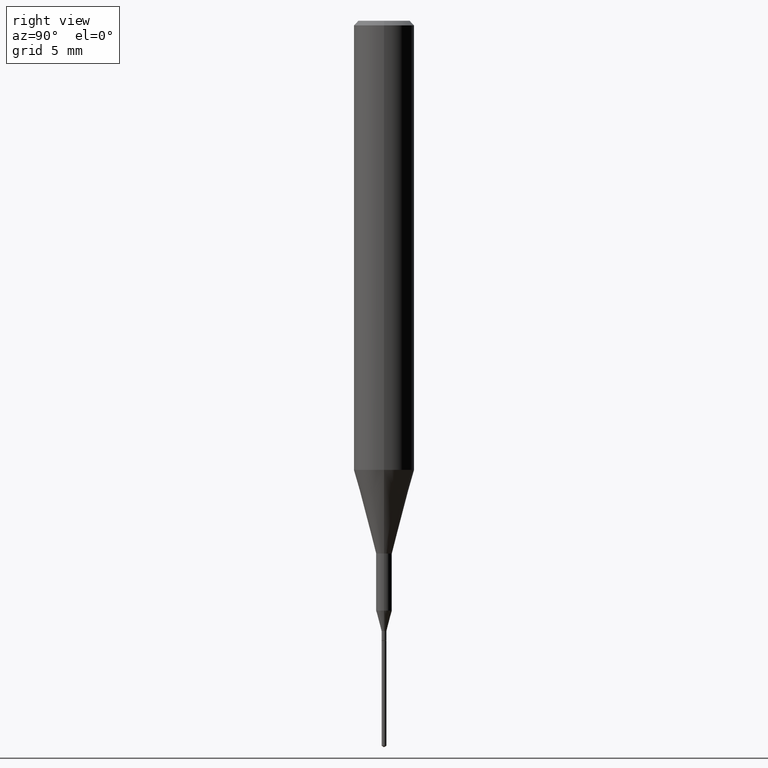
[diagram: clean part render]
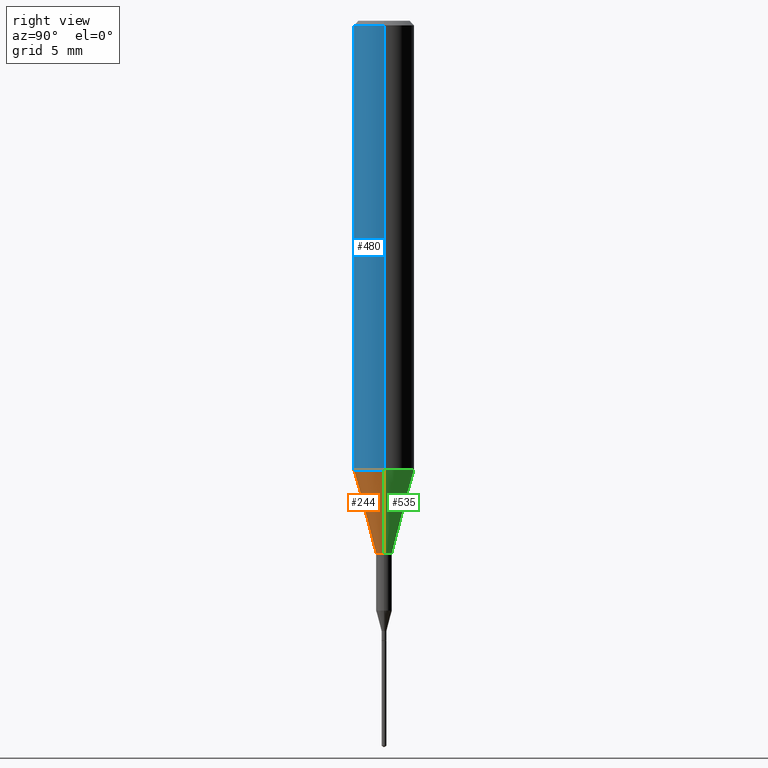
[diagram: same view with three faces highlighted in distinct colors, each labeled with its STEP entity id]
A machine part, right view with three faces highlighted in distinct colors.
Their STEP definitions:

[orange] entity #244 — the highlighted conical surface has half-angle 15 deg.
#46 = CARTESIAN_POINT ( 'NONE',  ( 2.267909797027042920E-29, -3.237974131778804114E-15, -0.9273926501499395458 ) ) ;
#48 = CARTESIAN_POINT ( 'NONE',  ( 0.06250000000000011102, -3.674409299134196572E-15, -0.9273926501499395458 ) ) ;
#119 = CARTESIAN_POINT ( 'NONE',  ( 2.267909797027042920E-29, -3.237974131778804114E-15, -0.9273926501499395458 ) ) ;
#130 = VECTOR ( 'NONE', #587, 39.37007874015748143 ) ;
#131 = EDGE_CURVE ( 'NONE', #434, #421, #566, .T. ) ;
#144 = CARTESIAN_POINT ( 'NONE',  ( -0.01624999999999999709, -3.931188865428788594E-15, -1.100000000000000089 ) ) ;
#163 = DIRECTION ( 'NONE',  ( 1.000000000000000000, -6.982962677686259611E-15, 0.000000000000000000 ) ) ;
#167 = CONICAL_SURFACE ( 'NONE', #325, 0.06250000000000011102, 0.2617993877991501850 ) ;
#174 = LINE ( 'NONE', #48, #512 ) ;
#180 = FACE_OUTER_BOUND ( 'NONE', #307, .T. ) ;
#189 = ORIENTED_EDGE ( 'NONE', *, *, #131, .T. ) ;
#193 = EDGE_CURVE ( 'NONE', #421, #335, #174, .T. ) ;
#209 = CARTESIAN_POINT ( 'NONE',  ( 2.690015686803650369E-29, -3.840629472727460101E-15, -1.100000000000000089 ) ) ;
#225 = AXIS2_PLACEMENT_3D ( 'NONE', #209, #395, #163 ) ;
#232 = DIRECTION ( 'NONE',  ( -2.445468806185136597E-29, 3.491481338843145583E-15, 1.000000000000000000 ) ) ;
#239 = ORIENTED_EDGE ( 'NONE', *, *, #552, .F. ) ;
#244 = ADVANCED_FACE ( 'NONE', ( #180 ), #167, .T. ) ;
#275 = DIRECTION ( 'NONE',  ( 0.2588190451025214611, 1.565188264969620982E-15, 0.9659258262890679791 ) ) ;
#300 = DIRECTION ( 'NONE',  ( -2.445468806185136597E-29, 3.491481338843145583E-15, 1.000000000000000000 ) ) ;
#302 = EDGE_CURVE ( 'NONE', #434, #374, #505, .T. ) ;
#307 = EDGE_LOOP ( 'NONE', ( #377, #189, #464, #239 ) ) ;
#323 = DIRECTION ( 'NONE',  ( 1.000000000000000000, -6.982962677686265922E-15, 0.000000000000000000 ) ) ;
#325 = AXIS2_PLACEMENT_3D ( 'NONE', #46, #232, #323 ) ;
#328 = CARTESIAN_POINT ( 'NONE',  ( -0.06250000000000011102, -2.793884921928740709E-15, -0.9273926501499395458 ) ) ;
#335 = VERTEX_POINT ( 'NONE', #411 ) ;
#374 = VERTEX_POINT ( 'NONE', #328 ) ;
#377 = ORIENTED_EDGE ( 'NONE', *, *, #302, .F. ) ;
#391 = AXIS2_PLACEMENT_3D ( 'NONE', #119, #300, #393 ) ;
#393 = DIRECTION ( 'NONE',  ( 1.000000000000000000, -6.982962677686265922E-15, 0.000000000000000000 ) ) ;
#395 = DIRECTION ( 'NONE',  ( -2.445468806185136597E-29, 3.491481338843145583E-15, 1.000000000000000000 ) ) ;
#408 = CARTESIAN_POINT ( 'NONE',  ( -0.06250000000000011102, -2.793884921928740709E-15, -0.9273926501499395458 ) ) ;
#411 = CARTESIAN_POINT ( 'NONE',  ( 0.06250000000000011102, -3.674409299134196572E-15, -0.9273926501499395458 ) ) ;
#421 = VERTEX_POINT ( 'NONE', #515 ) ;
#434 = VERTEX_POINT ( 'NONE', #144 ) ;
#464 = ORIENTED_EDGE ( 'NONE', *, *, #193, .T. ) ;
#505 = LINE ( 'NONE', #408, #130 ) ;
#512 = VECTOR ( 'NONE', #275, 39.37007874015748143 ) ;
#514 = CIRCLE ( 'NONE', #391, 0.06250000000000011102 ) ;
#515 = CARTESIAN_POINT ( 'NONE',  ( 0.01624999999999999709, -3.954102616239861778E-15, -1.100000000000000089 ) ) ;
#552 = EDGE_CURVE ( 'NONE', #374, #335, #514, .T. ) ;
#566 = CIRCLE ( 'NONE', #225, 0.01624999999999999709 ) ;
#587 = DIRECTION ( 'NONE',  ( -0.2588190451025214611, 5.211531920934550253E-15, 0.9659258262890679791 ) ) ;

[blue] entity #480 — the highlighted cylindrical surface (edge-blend (fillet) strip) has radius 1.5875 mm, axis along (-0, 0, 1).
#24 = ORIENTED_EDGE ( 'NONE', *, *, #155, .T. ) ;
#31 = LINE ( 'NONE', #67, #242 ) ;
#43 = ORIENTED_EDGE ( 'NONE', *, *, #60, .F. ) ;
#60 = EDGE_CURVE ( 'NONE', #374, #562, #31, .T. ) ;
#66 = CARTESIAN_POINT ( 'NONE',  ( -0.06250000000000000000, -1.191264174815165938E-15, -0.009375000000000069042 ) ) ;
#67 = CARTESIAN_POINT ( 'NONE',  ( -0.06250000000000005551, 4.440892098500630106E-16, -3.074334431409318916E-30 ) ) ;
#96 = DIRECTION ( 'NONE',  ( -2.445468806185136597E-29, 3.491481338843145583E-15, 1.000000000000000000 ) ) ;
#111 = EDGE_CURVE ( 'NONE', #562, #333, #121, .T. ) ;
#119 = CARTESIAN_POINT ( 'NONE',  ( 2.267909797027042920E-29, -3.237974131778804114E-15, -0.9273926501499395458 ) ) ;
#121 = CIRCLE ( 'NONE', #437, 0.06250000000000000000 ) ;
#141 = DIRECTION ( 'NONE',  ( 1.000000000000000000, -6.982962677686266711E-15, 4.876176775795935232E-29 ) ) ;
#155 = EDGE_CURVE ( 'NONE', #335, #333, #590, .T. ) ;
#162 = DIRECTION ( 'NONE',  ( -2.445468806185136597E-29, 3.491481338843145583E-15, 1.000000000000000000 ) ) ;
#212 = DIRECTION ( 'NONE',  ( -2.445468806185136877E-29, 3.491481338843145188E-15, 1.000000000000000000 ) ) ;
#242 = VECTOR ( 'NONE', #212, 39.37007874015748143 ) ;
#245 = CYLINDRICAL_SURFACE ( 'NONE', #371, 0.06250000000000005551 ) ;
#266 = DIRECTION ( 'NONE',  ( -2.445468806185136877E-29, 3.491481338843145188E-15, 1.000000000000000000 ) ) ;
#285 = ORIENTED_EDGE ( 'NONE', *, *, #552, .T. ) ;
#300 = DIRECTION ( 'NONE',  ( -2.445468806185136597E-29, 3.491481338843145583E-15, 1.000000000000000000 ) ) ;
#328 = CARTESIAN_POINT ( 'NONE',  ( -0.06250000000000011102, -2.793884921928740709E-15, -0.9273926501499395458 ) ) ;
#333 = VERTEX_POINT ( 'NONE', #456 ) ;
#335 = VERTEX_POINT ( 'NONE', #411 ) ;
#371 = AXIS2_PLACEMENT_3D ( 'NONE', #382, #96, #141 ) ;
#374 = VERTEX_POINT ( 'NONE', #328 ) ;
#382 = CARTESIAN_POINT ( 'NONE',  ( 0.000000000000000000, 0.000000000000000000, 0.000000000000000000 ) ) ;
#389 = VECTOR ( 'NONE', #266, 39.37007874015748143 ) ;
#391 = AXIS2_PLACEMENT_3D ( 'NONE', #119, #300, #393 ) ;
#393 = DIRECTION ( 'NONE',  ( 1.000000000000000000, -6.982962677686265922E-15, 0.000000000000000000 ) ) ;
#411 = CARTESIAN_POINT ( 'NONE',  ( 0.06250000000000011102, -3.674409299134196572E-15, -0.9273926501499395458 ) ) ;
#437 = AXIS2_PLACEMENT_3D ( 'NONE', #571, #162, #526 ) ;
#456 = CARTESIAN_POINT ( 'NONE',  ( 0.06250000000000000000, -4.691678049070464390E-16, -0.009375000000000069042 ) ) ;
#476 = ORIENTED_EDGE ( 'NONE', *, *, #111, .F. ) ;
#480 = ADVANCED_FACE ( 'NONE', ( #560 ), #245, .T. ) ;
#503 = CARTESIAN_POINT ( 'NONE',  ( 0.06250000000000005551, -4.364351673553920638E-16, 3.047610484872462323E-30 ) ) ;
#514 = CIRCLE ( 'NONE', #391, 0.06250000000000011102 ) ;
#526 = DIRECTION ( 'NONE',  ( 1.000000000000000000, -6.982962677686266711E-15, 0.000000000000000000 ) ) ;
#547 = EDGE_LOOP ( 'NONE', ( #43, #285, #24, #476 ) ) ;
#552 = EDGE_CURVE ( 'NONE', #374, #335, #514, .T. ) ;
#560 = FACE_OUTER_BOUND ( 'NONE', #547, .T. ) ;
#562 = VERTEX_POINT ( 'NONE', #66 ) ;
#571 = CARTESIAN_POINT ( 'NONE',  ( 2.292627005798582813E-31, -3.273263755165473266E-17, -0.009375000000000069042 ) ) ;
#590 = LINE ( 'NONE', #503, #389 ) ;

[green] entity #535 — the highlighted conical surface has half-angle 15 deg.
#30 = CARTESIAN_POINT ( 'NONE',  ( 2.267909797027042920E-29, -3.237974131778804114E-15, -0.9273926501499395458 ) ) ;
#48 = CARTESIAN_POINT ( 'NONE',  ( 0.06250000000000011102, -3.674409299134196572E-15, -0.9273926501499395458 ) ) ;
#108 = ORIENTED_EDGE ( 'NONE', *, *, #200, .F. ) ;
#126 = DIRECTION ( 'NONE',  ( 1.000000000000000000, -6.982962677686265922E-15, 0.000000000000000000 ) ) ;
#130 = VECTOR ( 'NONE', #587, 39.37007874015748143 ) ;
#144 = CARTESIAN_POINT ( 'NONE',  ( -0.01624999999999999709, -3.931188865428788594E-15, -1.100000000000000089 ) ) ;
#160 = ORIENTED_EDGE ( 'NONE', *, *, #302, .T. ) ;
#174 = LINE ( 'NONE', #48, #512 ) ;
#181 = EDGE_CURVE ( 'NONE', #421, #434, #466, .T. ) ;
#193 = EDGE_CURVE ( 'NONE', #421, #335, #174, .T. ) ;
#200 = EDGE_CURVE ( 'NONE', #335, #374, #538, .T. ) ;
#204 = AXIS2_PLACEMENT_3D ( 'NONE', #504, #540, #364 ) ;
#205 = EDGE_LOOP ( 'NONE', ( #494, #160, #108, #486 ) ) ;
#235 = CONICAL_SURFACE ( 'NONE', #567, 0.06250000000000011102, 0.2617993877991501850 ) ;
#251 = AXIS2_PLACEMENT_3D ( 'NONE', #544, #462, #126 ) ;
#275 = DIRECTION ( 'NONE',  ( 0.2588190451025214611, 1.565188264969620982E-15, 0.9659258262890679791 ) ) ;
#302 = EDGE_CURVE ( 'NONE', #434, #374, #505, .T. ) ;
#328 = CARTESIAN_POINT ( 'NONE',  ( -0.06250000000000011102, -2.793884921928740709E-15, -0.9273926501499395458 ) ) ;
#335 = VERTEX_POINT ( 'NONE', #411 ) ;
#350 = DIRECTION ( 'NONE',  ( 1.000000000000000000, -6.982962677686265922E-15, 0.000000000000000000 ) ) ;
#354 = FACE_OUTER_BOUND ( 'NONE', #205, .T. ) ;
#364 = DIRECTION ( 'NONE',  ( 1.000000000000000000, -6.982962677686259611E-15, 0.000000000000000000 ) ) ;
#374 = VERTEX_POINT ( 'NONE', #328 ) ;
#408 = CARTESIAN_POINT ( 'NONE',  ( -0.06250000000000011102, -2.793884921928740709E-15, -0.9273926501499395458 ) ) ;
#411 = CARTESIAN_POINT ( 'NONE',  ( 0.06250000000000011102, -3.674409299134196572E-15, -0.9273926501499395458 ) ) ;
#421 = VERTEX_POINT ( 'NONE', #515 ) ;
#434 = VERTEX_POINT ( 'NONE', #144 ) ;
#462 = DIRECTION ( 'NONE',  ( -2.445468806185136597E-29, 3.491481338843145583E-15, 1.000000000000000000 ) ) ;
#466 = CIRCLE ( 'NONE', #204, 0.01624999999999999709 ) ;
#486 = ORIENTED_EDGE ( 'NONE', *, *, #193, .F. ) ;
#494 = ORIENTED_EDGE ( 'NONE', *, *, #181, .T. ) ;
#504 = CARTESIAN_POINT ( 'NONE',  ( 2.690015686803650369E-29, -3.840629472727460101E-15, -1.100000000000000089 ) ) ;
#505 = LINE ( 'NONE', #408, #130 ) ;
#512 = VECTOR ( 'NONE', #275, 39.37007874015748143 ) ;
#515 = CARTESIAN_POINT ( 'NONE',  ( 0.01624999999999999709, -3.954102616239861778E-15, -1.100000000000000089 ) ) ;
#535 = ADVANCED_FACE ( 'NONE', ( #354 ), #235, .T. ) ;
#538 = CIRCLE ( 'NONE', #251, 0.06250000000000011102 ) ;
#540 = DIRECTION ( 'NONE',  ( -2.445468806185136597E-29, 3.491481338843145583E-15, 1.000000000000000000 ) ) ;
#544 = CARTESIAN_POINT ( 'NONE',  ( 2.267909797027042920E-29, -3.237974131778804114E-15, -0.9273926501499395458 ) ) ;
#567 = AXIS2_PLACEMENT_3D ( 'NONE', #30, #572, #350 ) ;
#572 = DIRECTION ( 'NONE',  ( -2.445468806185136597E-29, 3.491481338843145583E-15, 1.000000000000000000 ) ) ;
#587 = DIRECTION ( 'NONE',  ( -0.2588190451025214611, 5.211531920934550253E-15, 0.9659258262890679791 ) ) ;